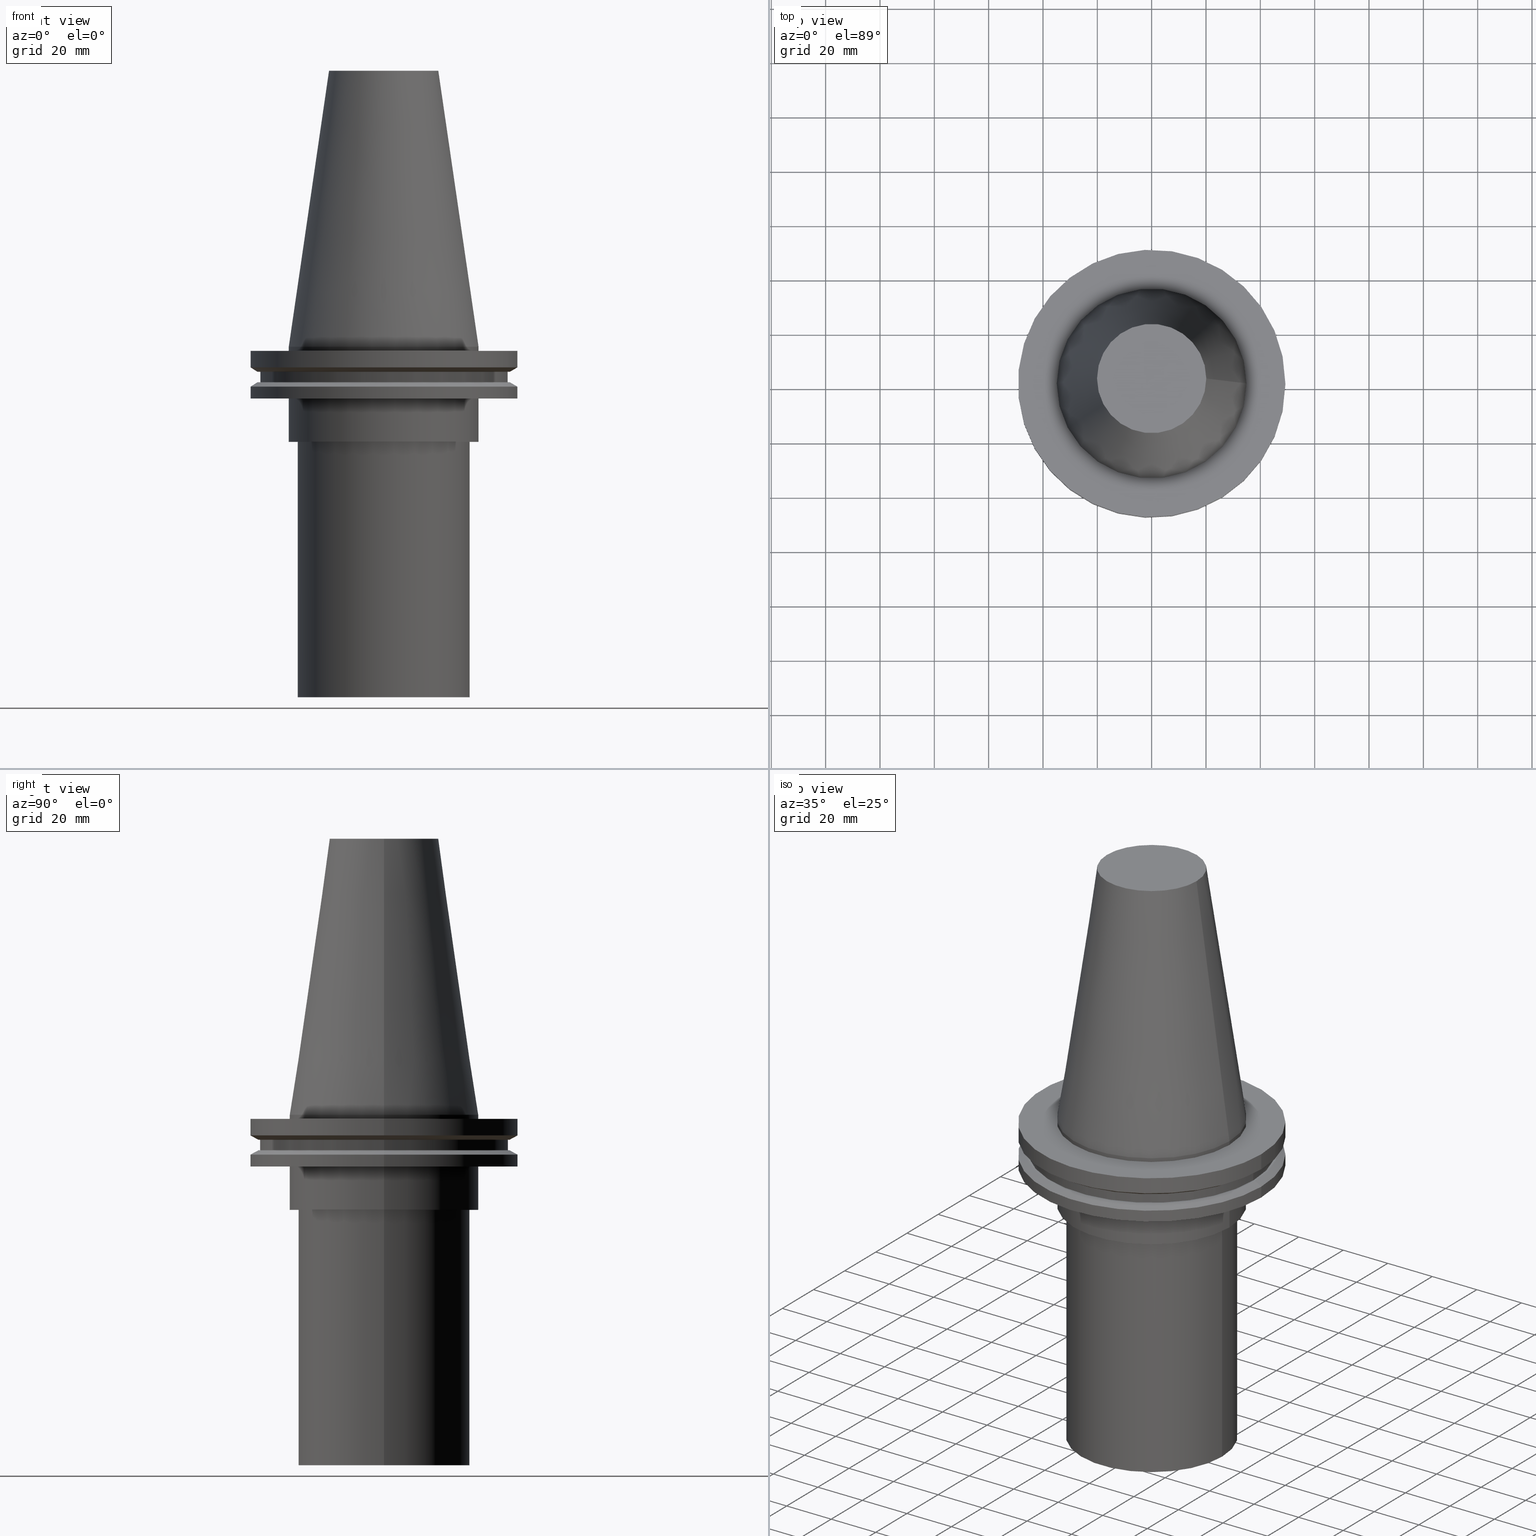
[diagram: canonical four-view strip — front | top / right | iso, engineering-drawing reading convention]
A machine part, canonical four-view strip (front | top / right | iso — engineering-drawing reading convention). The complete STEP part file that produces these views, byte-faithful:
ISO-10303-21;
HEADER;
FILE_DESCRIPTION (( 'STEP AP203' ),
    '1' );
FILE_NAME ('11.326.664.stp',
    '2022-03-09T14:53:10',
    ( '' ),
    ( '' ),
    'SwSTEP 2.0',
    'SolidWorks 2021',
    '' );
FILE_SCHEMA (( 'CONFIG_CONTROL_DESIGN' ));
ENDSEC;

DATA;
#1 = EDGE_LOOP ( 'NONE', ( #295 ) ) ;
#2 = ADVANCED_FACE ( 'NONE', ( #258, #282 ), #133, .F. ) ;
#3 = ADVANCED_FACE ( 'NONE', ( #8, #169 ), #300, .T. ) ;
#4 = CARTESIAN_POINT ( 'NONE',  ( 34.92499999999999716, 0.000000000000000000, -19.04999999999999716 ) ) ;
#5 = DIRECTION ( 'NONE',  ( -1.000000000000000000, 0.000000000000000000, 0.000000000000000000 ) ) ;
#6 = CYLINDRICAL_SURFACE ( 'NONE', #14, 49.21499999999999631 ) ;
#7 = VERTEX_POINT ( 'NONE', #221 ) ;
#8 = FACE_BOUND ( 'NONE', #272, .T. ) ;
#9 = AXIS2_PLACEMENT_3D ( 'NONE', #222, #366, #339 ) ;
#10 = ADVANCED_FACE ( 'NONE', ( #341, #227 ), #6, .T. ) ;
#11 = CARTESIAN_POINT ( 'NONE',  ( 0.000000000000000000, 0.000000000000000000, 0.000000000000000000 ) ) ;
#12 = EDGE_LOOP ( 'NONE', ( #91 ) ) ;
#13 = CARTESIAN_POINT ( 'NONE',  ( 0.000000000000000000, 0.000000000000000000, -13.05499999999999794 ) ) ;
#14 = AXIS2_PLACEMENT_3D ( 'NONE', #94, #337, #220 ) ;
#15 = DATE_AND_TIME ( #233, #95 ) ;
#16 = AXIS2_PLACEMENT_3D ( 'NONE', #171, #48, #183 ) ;
#17 = DIRECTION ( 'NONE',  ( 1.000000000000000000, 0.000000000000000000, 0.000000000000000000 ) ) ;
#18 = APPROVAL_ROLE ( '' ) ;
#19 = FACE_OUTER_BOUND ( 'NONE', #118, .T. ) ;
#20 = EDGE_LOOP ( 'NONE', ( #39 ) ) ;
#21 = DIRECTION ( 'NONE',  ( -0.000000000000000000, -0.000000000000000000, 1.000000000000000000 ) ) ;
#22 = EDGE_LOOP ( 'NONE', ( #180 ) ) ;
#23 = APPROVAL ( #83, 'UNSPECIFIED' ) ;
#24 = DIRECTION ( 'NONE',  ( 1.000000000000000000, 0.000000000000000000, 0.000000000000000000 ) ) ;
#25 = EDGE_LOOP ( 'NONE', ( #49 ) ) ;
#26 = ORIENTED_EDGE ( 'NONE', *, *, #247, .F. ) ;
#27 = EDGE_LOOP ( 'NONE', ( #332 ) ) ;
#28 = AXIS2_PLACEMENT_3D ( 'NONE', #13, #47, #228 ) ;
#29 = CARTESIAN_POINT ( 'NONE',  ( 49.21499999999998920, 0.000000000000000000, -14.65761014474876944 ) ) ;
#30 = LOCAL_TIME ( 8, 53, 10.00000000000000000, #243 ) ;
#31 = FACE_OUTER_BOUND ( 'NONE', #329, .T. ) ;
#32 = ADVANCED_FACE ( 'NONE', ( #31, #192 ), #157, .T. ) ;
#33 = FACE_OUTER_BOUND ( 'NONE', #126, .T. ) ;
#34 = CC_DESIGN_PERSON_AND_ORGANIZATION_ASSIGNMENT ( #241, #378, ( #374 ) ) ;
#35 = CARTESIAN_POINT ( 'NONE',  ( 49.21499999999998920, 0.000000000000000000, -19.04999999999999716 ) ) ;
#36 = CARTESIAN_POINT ( 'NONE',  ( 0.000000000000000000, 49.21499999999999631, -1.499999999999992895 ) ) ;
#37 = AXIS2_PLACEMENT_3D ( 'NONE', #288, #311, #219 ) ;
#38 = CARTESIAN_POINT ( 'NONE',  ( 31.63500000000000512, 0.000000000000000000, -35.00000000000000000 ) ) ;
#39 = ORIENTED_EDGE ( 'NONE', *, *, #247, .T. ) ;
#40 = CARTESIAN_POINT ( 'NONE',  ( 0.000000000000000000, 49.21499999999998920, -19.04999999999999716 ) ) ;
#41 = DIRECTION ( 'NONE',  ( -0.000000000000000000, -0.000000000000000000, 1.000000000000000000 ) ) ;
#42 = PERSON_AND_ORGANIZATION_ROLE ( 'classification_officer' ) ;
#43 = FACE_OUTER_BOUND ( 'NONE', #334, .T. ) ;
#44 = AXIS2_PLACEMENT_3D ( 'NONE', #262, #211, #239 ) ;
#45 = DATE_AND_TIME ( #322, #155 ) ;
#46 = AXIS2_PLACEMENT_3D ( 'NONE', #249, #368, #121 ) ;
#47 = DIRECTION ( 'NONE',  ( -0.000000000000000000, -0.000000000000000000, 1.000000000000000000 ) ) ;
#48 = DIRECTION ( 'NONE',  ( 0.000000000000000000, 0.000000000000000000, 1.000000000000000000 ) ) ;
#49 = ORIENTED_EDGE ( 'NONE', *, *, #256, .F. ) ;
#50 = CARTESIAN_POINT ( 'NONE',  ( 0.000000000000000000, 0.000000000000000000, -14.65761014474876944 ) ) ;
#51 = MANIFOLD_SOLID_BREP ( 'CKB', #253 ) ;
#52 = CALENDAR_DATE ( 2022, 9, 3 ) ;
#53 = EDGE_CURVE ( 'NONE', #123, #123, #386, .T. ) ;
#54 = ORIENTED_EDGE ( 'NONE', *, *, #53, .T. ) ;
#55 = COORDINATED_UNIVERSAL_TIME_OFFSET ( 6, 0, .BEHIND. ) ;
#56 = EDGE_LOOP ( 'NONE', ( #149 ) ) ;
#57 = VERTEX_POINT ( 'NONE', #29 ) ;
#58 = ORIENTED_EDGE ( 'NONE', *, *, #113, .T. ) ;
#59 = CARTESIAN_POINT ( 'NONE',  ( 0.000000000000000000, 0.000000000000000000, 101.5999999999999943 ) ) ;
#60 = EDGE_LOOP ( 'NONE', ( #376 ) ) ;
#61 = UNCERTAINTY_MEASURE_WITH_UNIT (LENGTH_MEASURE( 1.000000000000000082E-05 ), #229, 'distance_accuracy_value', 'NONE');
#62 = ORIENTED_EDGE ( 'NONE', *, *, #304, .T. ) ;
#63 = CC_DESIGN_APPROVAL ( #168, ( #374 ) ) ;
#64 = FACE_BOUND ( 'NONE', #387, .T. ) ;
#65 = FACE_OUTER_BOUND ( 'NONE', #177, .T. ) ;
#66 = DATE_AND_TIME ( #359, #30 ) ;
#67 = FACE_OUTER_BOUND ( 'NONE', #310, .T. ) ;
#68 = CC_DESIGN_DATE_AND_TIME_ASSIGNMENT ( #45, #110, ( #105 ) ) ;
#69 = CARTESIAN_POINT ( 'NONE',  ( 20.10819343178871321, 0.000000000000000000, 101.5999999999999801 ) ) ;
#70 = PLANE ( 'NONE',  #135 ) ;
#71 = ORGANIZATION ( 'UNSPECIFIED', 'UNSPECIFIED', '' ) ;
#72 = ADVANCED_FACE ( 'NONE', ( #131, #67 ), #70, .F. ) ;
#73 = CIRCLE ( 'NONE', #234, 31.63500000000000512 ) ;
#74 = CARTESIAN_POINT ( 'NONE',  ( 0.000000000000000000, 45.64500000000000313, -13.05499999999999794 ) ) ;
#75 = CC_DESIGN_PERSON_AND_ORGANIZATION_ASSIGNMENT ( #331, #42, ( #117 ) ) ;
#76 = PERSON ( 'UNSPECIFIED', 'UNSPECIFIED', 'UNSPECIFIED', ('UNSPECIFIED'), ('UNSPECIFIED'), ('UNSPECIFIED') ) ;
#77 = DIRECTION ( 'NONE',  ( 1.000000000000000000, 0.000000000000000000, 0.000000000000000000 ) ) ;
#78 = FACE_BOUND ( 'NONE', #151, .T. ) ;
#79 = APPLICATION_PROTOCOL_DEFINITION ( 'international standard', 'config_control_design', 1994, #226 ) ;
#80 = APPLICATION_CONTEXT ( 'configuration controlled 3d designs of mechanical parts and assemblies' ) ;
#81 = PLANE ( 'NONE',  #125 ) ;
#82 = CIRCLE ( 'NONE', #276, 49.21499999999998920 ) ;
#83 = APPROVAL_STATUS ( 'not_yet_approved' ) ;
#84 = AXIS2_PLACEMENT_3D ( 'NONE', #349, #383, #292 ) ;
#85 = CARTESIAN_POINT ( 'NONE',  ( 0.000000000000000000, 0.000000000000000000, -13.05499999999999794 ) ) ;
#86 = ADVANCED_FACE ( 'NONE', ( #194, #370 ), #197, .F. ) ;
#87 = PERSON_AND_ORGANIZATION_ROLE ( 'design_owner' ) ;
#88 = ORIENTED_EDGE ( 'NONE', *, *, #210, .T. ) ;
#89 = FACE_OUTER_BOUND ( 'NONE', #129, .T. ) ;
#90 = COORDINATED_UNIVERSAL_TIME_OFFSET ( 6, 0, .BEHIND. ) ;
#91 = ORIENTED_EDGE ( 'NONE', *, *, #283, .T. ) ;
#92 = ORIENTED_EDGE ( 'NONE', *, *, #225, .F. ) ;
#93 = VERTEX_POINT ( 'NONE', #242 ) ;
#94 = CARTESIAN_POINT ( 'NONE',  ( 0.000000000000000000, 0.000000000000000000, 101.5999999999999943 ) ) ;
#95 = LOCAL_TIME ( 8, 53, 10.00000000000000000, #55 ) ;
#96 = VERTEX_POINT ( 'NONE', #364 ) ;
#97 = CC_DESIGN_DATE_AND_TIME_ASSIGNMENT ( #15, #352, ( #117 ) ) ;
#98 = DIRECTION ( 'NONE',  ( 0.000000000000000000, 0.000000000000000000, -1.000000000000000000 ) ) ;
#99 = VERTEX_POINT ( 'NONE', #340 ) ;
#100 = DIRECTION ( 'NONE',  ( 1.000000000000000000, 0.000000000000000000, 0.000000000000000000 ) ) ;
#101 = ADVANCED_FACE ( 'NONE', ( #33 ), #259, .F. ) ;
#102 = AXIS2_PLACEMENT_3D ( 'NONE', #377, #248, #167 ) ;
#103 =( GEOMETRIC_REPRESENTATION_CONTEXT ( 3 ) GLOBAL_UNCERTAINTY_ASSIGNED_CONTEXT ( ( #61 ) ) GLOBAL_UNIT_ASSIGNED_CONTEXT ( ( #229, #270, #115 ) ) REPRESENTATION_CONTEXT ( 'NONE', 'WORKASPACE' ) );
#104 = DIRECTION ( 'NONE',  ( 1.000000000000000000, 0.000000000000000000, 0.000000000000000000 ) ) ;
#105 = PRODUCT_DEFINITION ( 'UNKNOWN', '', #374, #318 ) ;
#106 = AXIS2_PLACEMENT_3D ( 'NONE', #40, #250, #287 ) ;
#107 = EDGE_LOOP ( 'NONE', ( #303 ) ) ;
#108 = VERTEX_POINT ( 'NONE', #348 ) ;
#109 = DIRECTION ( 'NONE',  ( -0.000000000000000000, -0.000000000000000000, 1.000000000000000000 ) ) ;
#110 = DATE_TIME_ROLE ( 'creation_date' ) ;
#111 = FACE_OUTER_BOUND ( 'NONE', #12, .T. ) ;
#112 = PERSON_AND_ORGANIZATION ( #76, #71 ) ;
#113 = EDGE_CURVE ( 'NONE', #127, #127, #299, .T. ) ;
#114 = FACE_OUTER_BOUND ( 'NONE', #162, .T. ) ;
#115 =( NAMED_UNIT ( * ) SI_UNIT ( $, .STERADIAN. ) SOLID_ANGLE_UNIT ( ) );
#116 = AXIS2_PLACEMENT_3D ( 'NONE', #246, #193, #336 ) ;
#117 = SECURITY_CLASSIFICATION ( '', '', #212 ) ;
#118 = EDGE_LOOP ( 'NONE', ( #363 ) ) ;
#119 = CARTESIAN_POINT ( 'NONE',  ( 0.000000000000000000, 20.10819343178871321, 101.5999999999999943 ) ) ;
#120 = COORDINATED_UNIVERSAL_TIME_OFFSET ( 6, 0, .BEHIND. ) ;
#121 = DIRECTION ( 'NONE',  ( 1.000000000000000000, 0.000000000000000000, 0.000000000000000000 ) ) ;
#122 = ORIENTED_EDGE ( 'NONE', *, *, #283, .F. ) ;
#123 = VERTEX_POINT ( 'NONE', #35 ) ;
#124 = CIRCLE ( 'NONE', #9, 49.21500000000000341 ) ;
#125 = AXIS2_PLACEMENT_3D ( 'NONE', #326, #263, #176 ) ;
#126 = EDGE_LOOP ( 'NONE', ( #122 ) ) ;
#127 = VERTEX_POINT ( 'NONE', #245 ) ;
#128 = DIRECTION ( 'NONE',  ( -1.000000000000000000, 0.000000000000000000, -0.000000000000000000 ) ) ;
#129 = EDGE_LOOP ( 'NONE', ( #391 ) ) ;
#130 = VERTEX_POINT ( 'NONE', #69 ) ;
#131 = FACE_BOUND ( 'NONE', #25, .T. ) ;
#132 = CIRCLE ( 'NONE', #367, 45.64500000000000313 ) ;
#133 = PLANE ( 'NONE',  #106 ) ;
#134 = EDGE_LOOP ( 'NONE', ( #160 ) ) ;
#135 = AXIS2_PLACEMENT_3D ( 'NONE', #74, #200, #128 ) ;
#136 = CIRCLE ( 'NONE', #345, 31.63500000000000512 ) ;
#137 = DIRECTION ( 'NONE',  ( 1.000000000000000000, 0.000000000000000000, 0.000000000000000000 ) ) ;
#138 = PERSON_AND_ORGANIZATION ( #76, #71 ) ;
#139 = CARTESIAN_POINT ( 'NONE',  ( 0.000000000000000000, 0.000000000000000000, 101.5999999999999801 ) ) ;
#140 = APPROVAL_STATUS ( 'not_yet_approved' ) ;
#141 = DIRECTION ( 'NONE',  ( 1.000000000000000000, 0.000000000000000000, 0.000000000000000000 ) ) ;
#142 = EDGE_LOOP ( 'NONE', ( #26 ) ) ;
#143 = CARTESIAN_POINT ( 'NONE',  ( 0.000000000000000000, 0.000000000000000000, -19.04999999999999716 ) ) ;
#144 = AXIS2_PLACEMENT_3D ( 'NONE', #50, #235, #289 ) ;
#145 = MECHANICAL_CONTEXT ( 'NONE', #80, 'mechanical' ) ;
#146 = EDGE_LOOP ( 'NONE', ( #277 ) ) ;
#147 = CARTESIAN_POINT ( 'NONE',  ( 0.000000000000000000, 0.000000000000000000, -129.0000000000000000 ) ) ;
#148 = DATE_AND_TIME ( #350, #394 ) ;
#149 = ORIENTED_EDGE ( 'NONE', *, *, #286, .T. ) ;
#150 = DIRECTION ( 'NONE',  ( -0.000000000000000000, -0.000000000000000000, 1.000000000000000000 ) ) ;
#151 = EDGE_LOOP ( 'NONE', ( #335 ) ) ;
#152 = CIRCLE ( 'NONE', #373, 34.92499999999999716 ) ;
#153 = ORIENTED_EDGE ( 'NONE', *, *, #388, .F. ) ;
#154 = EDGE_CURVE ( 'NONE', #96, #96, #124, .T. ) ;
#155 = LOCAL_TIME ( 8, 53, 10.00000000000000000, #120 ) ;
#156 = DIRECTION ( 'NONE',  ( 1.000000000000000000, 0.000000000000000000, 0.000000000000000000 ) ) ;
#157 = CYLINDRICAL_SURFACE ( 'NONE', #196, 49.21499999999998920 ) ;
#158 = ADVANCED_FACE ( 'NONE', ( #65, #317 ), #384, .F. ) ;
#159 = FACE_OUTER_BOUND ( 'NONE', #146, .T. ) ;
#160 = ORIENTED_EDGE ( 'NONE', *, *, #178, .T. ) ;
#161 = CARTESIAN_POINT ( 'NONE',  ( 45.64500000000000313, 0.000000000000000000, -9.204999999999991189 ) ) ;
#162 = EDGE_LOOP ( 'NONE', ( #298 ) ) ;
#163 = VERTEX_POINT ( 'NONE', #316 ) ;
#164 = ADVANCED_FACE ( 'NONE', ( #114, #43 ), #203, .T. ) ;
#165 = AXIS2_PLACEMENT_3D ( 'NONE', #36, #284, #252 ) ;
#166 = CC_DESIGN_APPROVAL ( #23, ( #117 ) ) ;
#167 = DIRECTION ( 'NONE',  ( 1.000000000000000000, 0.000000000000000000, 0.000000000000000000 ) ) ;
#168 = APPROVAL ( #140, 'UNSPECIFIED' ) ;
#169 = FACE_OUTER_BOUND ( 'NONE', #184, .T. ) ;
#170 = DIRECTION ( 'NONE',  ( 1.000000000000000000, 0.000000000000000000, 0.000000000000000000 ) ) ;
#171 = CARTESIAN_POINT ( 'NONE',  ( 0.000000000000000000, 0.000000000000000000, 0.000000000000000000 ) ) ;
#172 = CIRCLE ( 'NONE', #44, 46.43919780457007818 ) ;
#173 = CARTESIAN_POINT ( 'NONE',  ( 0.000000000000000000, 0.000000000000000000, 101.5999999999999943 ) ) ;
#174 = APPROVAL_PERSON_ORGANIZATION ( #175, #189, #18 ) ;
#175 = PERSON_AND_ORGANIZATION ( #76, #71 ) ;
#176 = DIRECTION ( 'NONE',  ( 1.000000000000000000, 0.000000000000000000, 0.000000000000000000 ) ) ;
#177 = EDGE_LOOP ( 'NONE', ( #360 ) ) ;
#178 = EDGE_CURVE ( 'NONE', #313, #313, #353, .T. ) ;
#179 = DIRECTION ( 'NONE',  ( 0.000000000000000000, -0.000000000000000000, 1.000000000000000000 ) ) ;
#180 = ORIENTED_EDGE ( 'NONE', *, *, #53, .F. ) ;
#181 = ADVANCED_FACE ( 'NONE', ( #328 ), #324, .F. ) ;
#182 = DIRECTION ( 'NONE',  ( 1.000000000000000000, 0.000000000000000000, 0.000000000000000000 ) ) ;
#183 = DIRECTION ( 'NONE',  ( 1.000000000000000000, 0.000000000000000000, 0.000000000000000000 ) ) ;
#184 = EDGE_LOOP ( 'NONE', ( #58 ) ) ;
#185 = VERTEX_POINT ( 'NONE', #4 ) ;
#186 = ORIENTED_EDGE ( 'NONE', *, *, #256, .T. ) ;
#187 = CARTESIAN_POINT ( 'NONE',  ( 0.000000000000000000, 0.000000000000000000, 101.5999999999999943 ) ) ;
#188 = AXIS2_PLACEMENT_3D ( 'NONE', #372, #320, #100 ) ;
#189 = APPROVAL ( #202, 'UNSPECIFIED' ) ;
#190 = DIRECTION ( 'NONE',  ( -0.000000000000000000, -0.000000000000000000, 1.000000000000000000 ) ) ;
#191 = FACE_OUTER_BOUND ( 'NONE', #280, .T. ) ;
#192 = FACE_OUTER_BOUND ( 'NONE', #215, .T. ) ;
#193 = DIRECTION ( 'NONE',  ( -0.000000000000000000, -0.000000000000000000, 1.000000000000000000 ) ) ;
#194 = FACE_BOUND ( 'NONE', #257, .T. ) ;
#195 = VERTEX_POINT ( 'NONE', #38 ) ;
#196 = AXIS2_PLACEMENT_3D ( 'NONE', #315, #190, #104 ) ;
#197 = PLANE ( 'NONE',  #165 ) ;
#198 = AXIS2_PLACEMENT_3D ( 'NONE', #187, #307, #156 ) ;
#199 = AXIS2_PLACEMENT_3D ( 'NONE', #139, #347, #137 ) ;
#200 = DIRECTION ( 'NONE',  ( 0.000000000000000000, 0.000000000000000000, -1.000000000000000000 ) ) ;
#201 = DIRECTION ( 'NONE',  ( -1.000000000000000000, 0.000000000000000000, -0.000000000000000000 ) ) ;
#202 = APPROVAL_STATUS ( 'not_yet_approved' ) ;
#203 = CYLINDRICAL_SURFACE ( 'NONE', #343, 45.64500000000000313 ) ;
#204 = APPROVAL_DATE_TIME ( #148, #189 ) ;
#205 = DIRECTION ( 'NONE',  ( -0.000000000000000000, -0.000000000000000000, 1.000000000000000000 ) ) ;
#206 = CC_DESIGN_APPROVAL ( #189, ( #105 ) ) ;
#207 = VERTEX_POINT ( 'NONE', #297 ) ;
#208 = CARTESIAN_POINT ( 'NONE',  ( 0.000000000000000000, 0.000000000000000000, -9.204999999999991189 ) ) ;
#209 = COORDINATED_UNIVERSAL_TIME_OFFSET ( 6, 0, .BEHIND. ) ;
#210 = EDGE_CURVE ( 'NONE', #93, #93, #172, .T. ) ;
#211 = DIRECTION ( 'NONE',  ( -0.000000000000000000, -0.000000000000000000, 1.000000000000000000 ) ) ;
#212 = SECURITY_CLASSIFICATION_LEVEL ( 'unclassified' ) ;
#213 = ORIENTED_EDGE ( 'NONE', *, *, #327, .T. ) ;
#214 = ADVANCED_FACE ( 'NONE', ( #78, #89 ), #266, .T. ) ;
#215 = EDGE_LOOP ( 'NONE', ( #54 ) ) ;
#216 = PRODUCT_DEFINITION_SHAPE ( 'NONE', 'NONE',  #105 ) ;
#217 = DIRECTION ( 'NONE',  ( 1.000000000000000000, 0.000000000000000000, 0.000000000000000000 ) ) ;
#218 = AXIS2_PLACEMENT_3D ( 'NONE', #119, #261, #201 ) ;
#219 = DIRECTION ( 'NONE',  ( 1.000000000000000000, 0.000000000000000000, 0.000000000000000000 ) ) ;
#220 = DIRECTION ( 'NONE',  ( 1.000000000000000000, 0.000000000000000000, 0.000000000000000000 ) ) ;
#221 = CARTESIAN_POINT ( 'NONE',  ( 31.63500000000000512, 0.000000000000000000, -129.0000000000000000 ) ) ;
#222 = CARTESIAN_POINT ( 'NONE',  ( 0.000000000000000000, 0.000000000000000000, -7.602389855251287187 ) ) ;
#223 = AXIS2_PLACEMENT_3D ( 'NONE', #59, #395, #279 ) ;
#224 = APPROVAL_PERSON_ORGANIZATION ( #138, #23, #305 ) ;
#225 = EDGE_CURVE ( 'NONE', #57, #57, #82, .T. ) ;
#226 = APPLICATION_CONTEXT ( 'configuration controlled 3d designs of mechanical parts and assemblies' ) ;
#227 = FACE_OUTER_BOUND ( 'NONE', #60, .T. ) ;
#228 = DIRECTION ( 'NONE',  ( 1.000000000000000000, 0.000000000000000000, 0.000000000000000000 ) ) ;
#229 =( LENGTH_UNIT ( ) NAMED_UNIT ( * ) SI_UNIT ( .MILLI., .METRE. ) );
#230 = DIRECTION ( 'NONE',  ( 1.000000000000000000, 0.000000000000000000, 0.000000000000000000 ) ) ;
#231 = APPROVAL_DATE_TIME ( #290, #168 ) ;
#232 = FACE_BOUND ( 'NONE', #56, .T. ) ;
#233 = CALENDAR_DATE ( 2022, 9, 3 ) ;
#234 = AXIS2_PLACEMENT_3D ( 'NONE', #147, #271, #356 ) ;
#235 = DIRECTION ( 'NONE',  ( 0.000000000000000000, 0.000000000000000000, -1.000000000000000000 ) ) ;
#236 = LOCAL_TIME ( 8, 53, 10.00000000000000000, #209 ) ;
#237 = PERSON_AND_ORGANIZATION ( #76, #71 ) ;
#238 = ORIENTED_EDGE ( 'NONE', *, *, #319, .T. ) ;
#239 = DIRECTION ( 'NONE',  ( 1.000000000000000000, 0.000000000000000000, 0.000000000000000000 ) ) ;
#240 = CC_DESIGN_PERSON_AND_ORGANIZATION_ASSIGNMENT ( #264, #293, ( #105 ) ) ;
#241 = PERSON_AND_ORGANIZATION ( #76, #71 ) ;
#242 = CARTESIAN_POINT ( 'NONE',  ( 46.43919780457007818, 0.000000000000000000, -9.204999999999991189 ) ) ;
#243 = COORDINATED_UNIVERSAL_TIME_OFFSET ( 6, 0, .BEHIND. ) ;
#244 = AXIS2_PLACEMENT_3D ( 'NONE', #208, #109, #182 ) ;
#245 = CARTESIAN_POINT ( 'NONE',  ( 34.92499999999999005, 0.000000000000000000, 0.000000000000000000 ) ) ;
#246 = CARTESIAN_POINT ( 'NONE',  ( 0.000000000000000000, 0.000000000000000000, -9.204999999999991189 ) ) ;
#247 = EDGE_CURVE ( 'NONE', #185, #185, #152, .T. ) ;
#248 = DIRECTION ( 'NONE',  ( -0.000000000000000000, -0.000000000000000000, 1.000000000000000000 ) ) ;
#249 = CARTESIAN_POINT ( 'NONE',  ( 0.000000000000000000, 0.000000000000000000, -1.499999999999987566 ) ) ;
#250 = DIRECTION ( 'NONE',  ( 0.000000000000000000, -0.000000000000000000, 1.000000000000000000 ) ) ;
#251 = VERTEX_POINT ( 'NONE', #371 ) ;
#252 = DIRECTION ( 'NONE',  ( -1.000000000000000000, 0.000000000000000000, -0.000000000000000000 ) ) ;
#253 = CLOSED_SHELL ( 'NONE', ( #3, #181, #323, #375, #2, #32, #214, #72, #164, #158, #346, #10, #86, #365, #267, #101 ) ) ;
#254 = CIRCLE ( 'NONE', #84, 49.21499999999999631 ) ;
#255 = APPROVAL_PERSON_ORGANIZATION ( #237, #168, #381 ) ;
#256 = EDGE_CURVE ( 'NONE', #99, #99, #132, .T. ) ;
#257 = EDGE_LOOP ( 'NONE', ( #153 ) ) ;
#258 = FACE_OUTER_BOUND ( 'NONE', #22, .T. ) ;
#259 = PLANE ( 'NONE',  #188 ) ;
#260 = AXIS2_PLACEMENT_3D ( 'NONE', #392, #179, #24 ) ;
#261 = DIRECTION ( 'NONE',  ( 0.000000000000000000, 0.000000000000000000, -1.000000000000000000 ) ) ;
#262 = CARTESIAN_POINT ( 'NONE',  ( 0.000000000000000000, 0.000000000000000000, -9.204999999999991189 ) ) ;
#263 = DIRECTION ( 'NONE',  ( 0.000000000000000000, -0.000000000000000000, 1.000000000000000000 ) ) ;
#264 = PERSON_AND_ORGANIZATION ( #76, #71 ) ;
#265 = EDGE_LOOP ( 'NONE', ( #238 ) ) ;
#266 = CONICAL_SURFACE ( 'NONE', #144, 49.21499999999998920, 1.047197551196554333 ) ;
#267 = ADVANCED_FACE ( 'NONE', ( #19, #111 ), #357, .T. ) ;
#268 = AXIS2_PLACEMENT_3D ( 'NONE', #380, #41, #170 ) ;
#269 = CARTESIAN_POINT ( 'NONE',  ( 0.000000000000000000, 0.000000000000000000, -35.00000000000000000 ) ) ;
#270 =( NAMED_UNIT ( * ) PLANE_ANGLE_UNIT ( ) SI_UNIT ( $, .RADIAN. ) );
#271 = DIRECTION ( 'NONE',  ( -0.000000000000000000, -0.000000000000000000, 1.000000000000000000 ) ) ;
#272 = EDGE_LOOP ( 'NONE', ( #393 ) ) ;
#273 = CYLINDRICAL_SURFACE ( 'NONE', #223, 34.92499999999999716 ) ;
#274 = CC_DESIGN_PERSON_AND_ORGANIZATION_ASSIGNMENT ( #112, #358, ( #374 ) ) ;
#275 = EDGE_LOOP ( 'NONE', ( #344 ) ) ;
#276 = AXIS2_PLACEMENT_3D ( 'NONE', #321, #205, #77 ) ;
#277 = ORIENTED_EDGE ( 'NONE', *, *, #388, .T. ) ;
#278 = PRODUCT ( '11.326.664', '11.326.664', '', ( #145 ) ) ;
#279 = DIRECTION ( 'NONE',  ( 1.000000000000000000, 0.000000000000000000, 0.000000000000000000 ) ) ;
#280 = EDGE_LOOP ( 'NONE', ( #213 ) ) ;
#281 = SHAPE_DEFINITION_REPRESENTATION ( #216, #285 ) ;
#282 = FACE_BOUND ( 'NONE', #20, .T. ) ;
#283 = EDGE_CURVE ( 'NONE', #7, #7, #73, .T. ) ;
#284 = DIRECTION ( 'NONE',  ( 0.000000000000000000, 0.000000000000000000, -1.000000000000000000 ) ) ;
#285 = ADVANCED_BREP_SHAPE_REPRESENTATION ( '11.326.664', ( #51, #16 ), #103 ) ;
#286 = EDGE_CURVE ( 'NONE', #195, #195, #136, .T. ) ;
#287 = DIRECTION ( 'NONE',  ( 1.000000000000000000, 0.000000000000000000, 0.000000000000000000 ) ) ;
#288 = CARTESIAN_POINT ( 'NONE',  ( 0.000000000000000000, 0.000000000000000000, -19.04999999999999716 ) ) ;
#289 = DIRECTION ( 'NONE',  ( -1.000000000000000000, 0.000000000000000000, 0.000000000000000000 ) ) ;
#290 = DATE_AND_TIME ( #52, #236 ) ;
#291 = CIRCLE ( 'NONE', #199, 20.10819343178871321 ) ;
#292 = DIRECTION ( 'NONE',  ( 1.000000000000000000, 0.000000000000000000, 0.000000000000000000 ) ) ;
#293 = PERSON_AND_ORGANIZATION_ROLE ( 'creator' ) ;
#294 = CARTESIAN_POINT ( 'NONE',  ( 0.000000000000000000, 0.000000000000000000, -35.00000000000000000 ) ) ;
#295 = ORIENTED_EDGE ( 'NONE', *, *, #312, .T. ) ;
#296 = DIRECTION ( 'NONE',  ( -0.000000000000000000, -0.000000000000000000, 1.000000000000000000 ) ) ;
#297 = CARTESIAN_POINT ( 'NONE',  ( 34.92499999999999716, 0.000000000000000000, -35.00000000000000000 ) ) ;
#298 = ORIENTED_EDGE ( 'NONE', *, *, #178, .F. ) ;
#299 = CIRCLE ( 'NONE', #102, 34.92499999999999005 ) ;
#300 = CONICAL_SURFACE ( 'NONE', #361, 34.92499999999999005, 0.1448138465474119452 ) ;
#301 = CIRCLE ( 'NONE', #379, 34.92499999999999716 ) ;
#302 = DIRECTION ( 'NONE',  ( -0.000000000000000000, -0.000000000000000000, 1.000000000000000000 ) ) ;
#303 = ORIENTED_EDGE ( 'NONE', *, *, #319, .F. ) ;
#304 = EDGE_CURVE ( 'NONE', #163, #163, #369, .T. ) ;
#305 = APPROVAL_ROLE ( '' ) ;
#306 = EDGE_LOOP ( 'NONE', ( #308 ) ) ;
#307 = DIRECTION ( 'NONE',  ( -0.000000000000000000, -0.000000000000000000, 1.000000000000000000 ) ) ;
#308 = ORIENTED_EDGE ( 'NONE', *, *, #113, .F. ) ;
#309 = FACE_OUTER_BOUND ( 'NONE', #142, .T. ) ;
#310 = EDGE_LOOP ( 'NONE', ( #62 ) ) ;
#311 = DIRECTION ( 'NONE',  ( -0.000000000000000000, -0.000000000000000000, 1.000000000000000000 ) ) ;
#312 = EDGE_CURVE ( 'NONE', #130, #130, #291, .T. ) ;
#313 = VERTEX_POINT ( 'NONE', #161 ) ;
#314 = APPROVAL_DATE_TIME ( #66, #23 ) ;
#315 = CARTESIAN_POINT ( 'NONE',  ( 0.000000000000000000, 0.000000000000000000, 101.5999999999999943 ) ) ;
#316 = CARTESIAN_POINT ( 'NONE',  ( 46.43919780457007818, 0.000000000000000000, -13.05499999999999794 ) ) ;
#317 = FACE_BOUND ( 'NONE', #134, .T. ) ;
#318 = DESIGN_CONTEXT ( 'detailed design', #226, 'design' ) ;
#319 = EDGE_CURVE ( 'NONE', #251, #251, #254, .T. ) ;
#320 = DIRECTION ( 'NONE',  ( 0.000000000000000000, -0.000000000000000000, 1.000000000000000000 ) ) ;
#321 = CARTESIAN_POINT ( 'NONE',  ( 0.000000000000000000, 0.000000000000000000, -14.65761014474876944 ) ) ;
#322 = CALENDAR_DATE ( 2022, 9, 3 ) ;
#323 = ADVANCED_FACE ( 'NONE', ( #232, #351 ), #81, .F. ) ;
#324 = PLANE ( 'NONE',  #218 ) ;
#325 = CONICAL_SURFACE ( 'NONE', #116, 46.43919780457007818, 1.047197551196575205 ) ;
#326 = CARTESIAN_POINT ( 'NONE',  ( 0.000000000000000000, 34.92499999999999716, -35.00000000000000000 ) ) ;
#327 = EDGE_CURVE ( 'NONE', #207, #207, #301, .T. ) ;
#328 = FACE_OUTER_BOUND ( 'NONE', #1, .T. ) ;
#329 = EDGE_LOOP ( 'NONE', ( #92 ) ) ;
#330 = DIRECTION ( 'NONE',  ( 1.000000000000000000, 0.000000000000000000, 0.000000000000000000 ) ) ;
#331 = PERSON_AND_ORGANIZATION ( #76, #71 ) ;
#332 = ORIENTED_EDGE ( 'NONE', *, *, #154, .F. ) ;
#333 = CYLINDRICAL_SURFACE ( 'NONE', #198, 34.92499999999999005 ) ;
#334 = EDGE_LOOP ( 'NONE', ( #186 ) ) ;
#335 = ORIENTED_EDGE ( 'NONE', *, *, #304, .F. ) ;
#336 = DIRECTION ( 'NONE',  ( 1.000000000000000000, 0.000000000000000000, 0.000000000000000000 ) ) ;
#337 = DIRECTION ( 'NONE',  ( -0.000000000000000000, -0.000000000000000000, 1.000000000000000000 ) ) ;
#338 = FACE_OUTER_BOUND ( 'NONE', #27, .T. ) ;
#339 = DIRECTION ( 'NONE',  ( 1.000000000000000000, 0.000000000000000000, 0.000000000000000000 ) ) ;
#340 = CARTESIAN_POINT ( 'NONE',  ( 45.64500000000000313, 0.000000000000000000, -13.05499999999999794 ) ) ;
#341 = FACE_OUTER_BOUND ( 'NONE', #107, .T. ) ;
#342 = CC_DESIGN_PERSON_AND_ORGANIZATION_ASSIGNMENT ( #390, #87, ( #278 ) ) ;
#343 = AXIS2_PLACEMENT_3D ( 'NONE', #173, #21, #330 ) ;
#344 = ORIENTED_EDGE ( 'NONE', *, *, #327, .F. ) ;
#345 = AXIS2_PLACEMENT_3D ( 'NONE', #269, #389, #141 ) ;
#346 = ADVANCED_FACE ( 'NONE', ( #338, #64 ), #325, .T. ) ;
#347 = DIRECTION ( 'NONE',  ( -0.000000000000000000, -0.000000000000000000, 1.000000000000000000 ) ) ;
#348 = CARTESIAN_POINT ( 'NONE',  ( 34.92499999999999005, 0.000000000000000000, -1.499999999999987566 ) ) ;
#349 = CARTESIAN_POINT ( 'NONE',  ( 0.000000000000000000, 0.000000000000000000, -1.499999999999987566 ) ) ;
#350 = CALENDAR_DATE ( 2022, 9, 3 ) ;
#351 = FACE_OUTER_BOUND ( 'NONE', #275, .T. ) ;
#352 = DATE_TIME_ROLE ( 'classification_date' ) ;
#353 = CIRCLE ( 'NONE', #244, 45.64500000000000313 ) ;
#354 = CIRCLE ( 'NONE', #46, 34.92499999999999005 ) ;
#355 = CC_DESIGN_SECURITY_CLASSIFICATION ( #117, ( #374 ) ) ;
#356 = DIRECTION ( 'NONE',  ( 1.000000000000000000, 0.000000000000000000, 0.000000000000000000 ) ) ;
#357 = CYLINDRICAL_SURFACE ( 'NONE', #268, 31.63500000000000512 ) ;
#358 = PERSON_AND_ORGANIZATION_ROLE ( 'design_supplier' ) ;
#359 = CALENDAR_DATE ( 2022, 9, 3 ) ;
#360 = ORIENTED_EDGE ( 'NONE', *, *, #210, .F. ) ;
#361 = AXIS2_PLACEMENT_3D ( 'NONE', #11, #98, #5 ) ;
#362 = FACE_OUTER_BOUND ( 'NONE', #306, .T. ) ;
#363 = ORIENTED_EDGE ( 'NONE', *, *, #286, .F. ) ;
#364 = CARTESIAN_POINT ( 'NONE',  ( 49.21500000000000341, 0.000000000000000000, -7.602389855251287187 ) ) ;
#365 = ADVANCED_FACE ( 'NONE', ( #362, #159 ), #333, .T. ) ;
#366 = DIRECTION ( 'NONE',  ( -0.000000000000000000, -0.000000000000000000, 1.000000000000000000 ) ) ;
#367 = AXIS2_PLACEMENT_3D ( 'NONE', #85, #296, #230 ) ;
#368 = DIRECTION ( 'NONE',  ( -0.000000000000000000, -0.000000000000000000, 1.000000000000000000 ) ) ;
#369 = CIRCLE ( 'NONE', #28, 46.43919780457007818 ) ;
#370 = FACE_OUTER_BOUND ( 'NONE', #265, .T. ) ;
#371 = CARTESIAN_POINT ( 'NONE',  ( 49.21499999999999631, 0.000000000000000000, -1.499999999999987566 ) ) ;
#372 = CARTESIAN_POINT ( 'NONE',  ( 0.000000000000000000, 31.63500000000000512, -129.0000000000000000 ) ) ;
#373 = AXIS2_PLACEMENT_3D ( 'NONE', #143, #302, #17 ) ;
#374 = PRODUCT_DEFINITION_FORMATION_WITH_SPECIFIED_SOURCE ( 'ANY', '', #278, .NOT_KNOWN. ) ;
#375 = ADVANCED_FACE ( 'NONE', ( #309, #191 ), #273, .T. ) ;
#376 = ORIENTED_EDGE ( 'NONE', *, *, #154, .T. ) ;
#377 = CARTESIAN_POINT ( 'NONE',  ( 0.000000000000000000, 0.000000000000000000, 0.000000000000000000 ) ) ;
#378 = PERSON_AND_ORGANIZATION_ROLE ( 'creator' ) ;
#379 = AXIS2_PLACEMENT_3D ( 'NONE', #294, #150, #217 ) ;
#380 = CARTESIAN_POINT ( 'NONE',  ( 0.000000000000000000, 0.000000000000000000, 0.000000000000000000 ) ) ;
#381 = APPROVAL_ROLE ( '' ) ;
#382 = PRODUCT_RELATED_PRODUCT_CATEGORY ( 'detail', '', ( #278 ) ) ;
#383 = DIRECTION ( 'NONE',  ( -0.000000000000000000, -0.000000000000000000, 1.000000000000000000 ) ) ;
#384 = PLANE ( 'NONE',  #260 ) ;
#385 = APPLICATION_PROTOCOL_DEFINITION ( 'international standard', 'config_control_design', 1994, #80 ) ;
#386 = CIRCLE ( 'NONE', #37, 49.21499999999998920 ) ;
#387 = EDGE_LOOP ( 'NONE', ( #88 ) ) ;
#388 = EDGE_CURVE ( 'NONE', #108, #108, #354, .T. ) ;
#389 = DIRECTION ( 'NONE',  ( -0.000000000000000000, -0.000000000000000000, 1.000000000000000000 ) ) ;
#390 = PERSON_AND_ORGANIZATION ( #76, #71 ) ;
#391 = ORIENTED_EDGE ( 'NONE', *, *, #225, .T. ) ;
#392 = CARTESIAN_POINT ( 'NONE',  ( 0.000000000000000000, 46.43919780457007818, -9.204999999999998295 ) ) ;
#393 = ORIENTED_EDGE ( 'NONE', *, *, #312, .F. ) ;
#394 = LOCAL_TIME ( 8, 53, 10.00000000000000000, #90 ) ;
#395 = DIRECTION ( 'NONE',  ( -0.000000000000000000, -0.000000000000000000, 1.000000000000000000 ) ) ;
ENDSEC;
END-ISO-10303-21;
